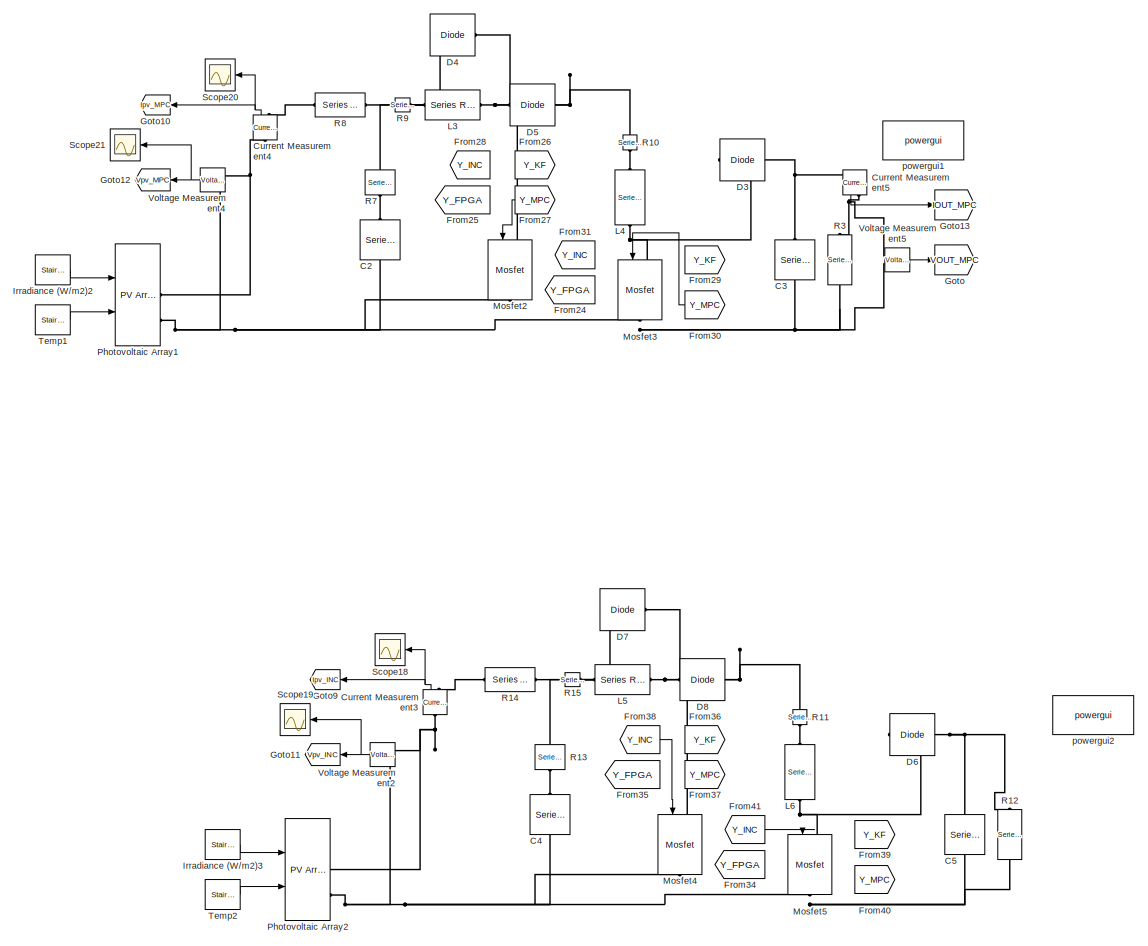
[diagram: root canvas - part 1/4, right side, full height]
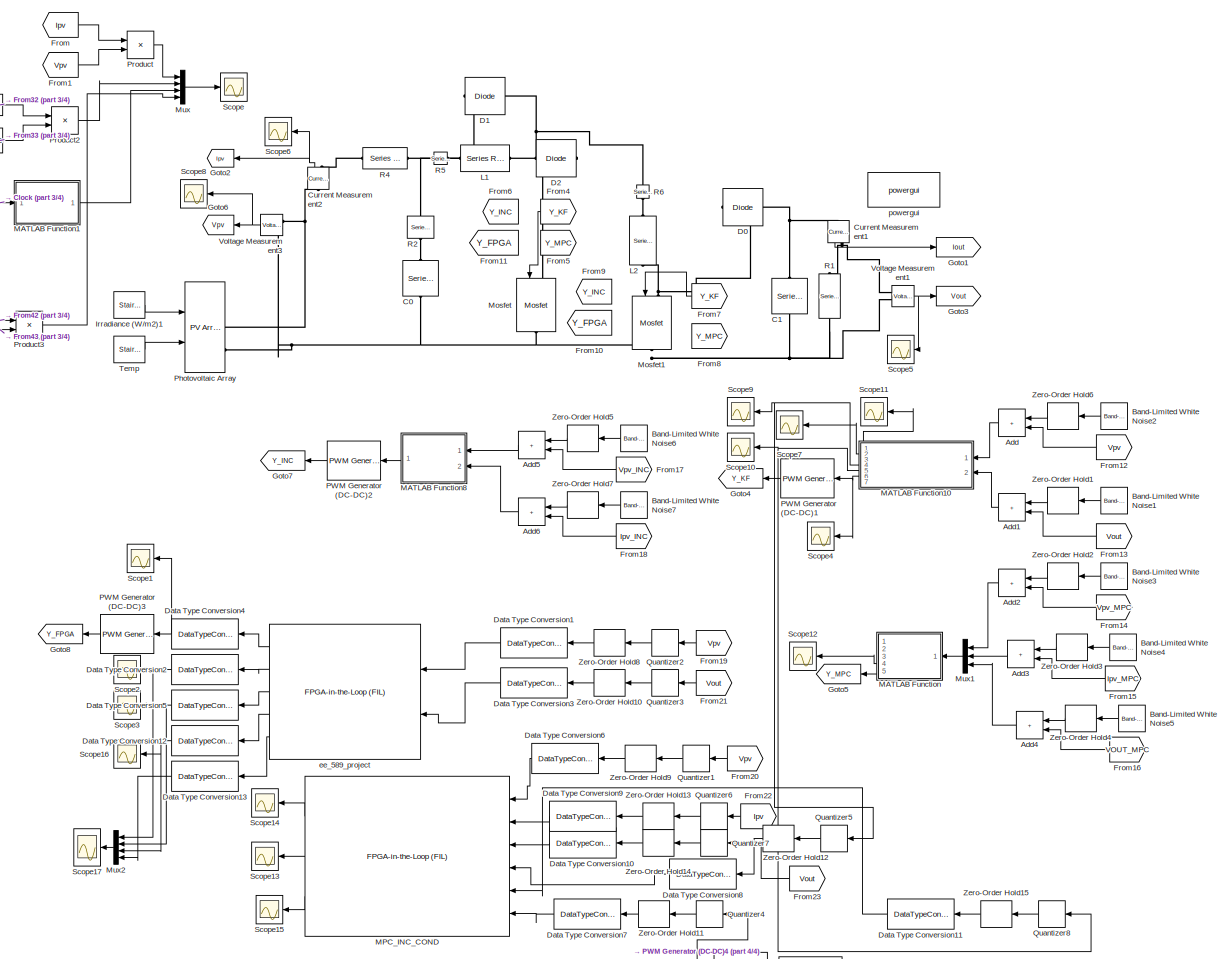
[diagram: root canvas - part 2/4, left side, full height]
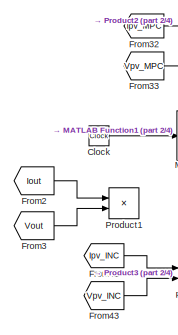
[diagram: root canvas - part 3/4, top left region]
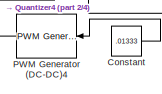
[diagram: root canvas - part 4/4, bottom center region]
MODEL slx_683b983c25f3
KIND model
CONFIG AbsTol = auto
CONFIG EnableMultiTasking = off
CONFIG FixedStep = auto
CONFIG MaxStep = auto
CONFIG MinStep = auto
CONFIG RelTol = 1e-3
CONFIG SampleTimeConstraint = Unconstrained
CONFIG SolverName = VariableStepAuto
CONFIG StartTime = 0.0
CONFIG StopTime = 2
BLOCK [Reference]  Temp  REF=powerlib_meascontrol/Pulse & Signal
Generators/Stair
Generator
  NameLocation = top
  Ports = [0, 1]
  SourceBlock = powerlib_meascontrol/Pulse & Signal\nGenerators/Stair\nGenerator
  SourceProductBaseCode = PS
  SourceType = Stair Generator
BLOCK [Reference]  Temp1  REF=powerlib_meascontrol/Pulse & Signal
Generators/Stair
Generator
  NameLocation = top
  Ports = [0, 1]
  SourceBlock = powerlib_meascontrol/Pulse & Signal\nGenerators/Stair\nGenerator
  SourceProductBaseCode = PS
  SourceType = Stair Generator
BLOCK [Reference]  Temp2  REF=powerlib_meascontrol/Pulse & Signal
Generators/Stair
Generator
  NameLocation = top
  Ports = [0, 1]
  SourceBlock = powerlib_meascontrol/Pulse & Signal\nGenerators/Stair\nGenerator
  SourceProductBaseCode = PS
  SourceType = Stair Generator
BLOCK [Sum] Add
  IconShape = rectangular
  Ports = [2, 1]
BLOCK [Sum] Add1
  IconShape = rectangular
  Ports = [2, 1]
BLOCK [Sum] Add2
  IconShape = rectangular
  Ports = [2, 1]
BLOCK [Sum] Add3
  IconShape = rectangular
  Ports = [2, 1]
BLOCK [Sum] Add4
  IconShape = rectangular
  Ports = [2, 1]
BLOCK [Sum] Add5
  IconShape = rectangular
  Ports = [2, 1]
BLOCK [Sum] Add6
  IconShape = rectangular
  Ports = [2, 1]
BLOCK [Reference] Band-Limited White Noise1  REF=simulink/Sources/Band-Limited
White Noise
  Commented = on
  Ports = [0, 1]
  SourceBlock = simulink/Sources/Band-Limited\nWhite Noise
  SourceProductBaseCode = SL
  SourceType = Band-Limited White Noise.
BLOCK [Reference] Band-Limited White Noise2  REF=simulink/Sources/Band-Limited
White Noise
  Commented = on
  Ports = [0, 1]
  SourceBlock = simulink/Sources/Band-Limited\nWhite Noise
  SourceProductBaseCode = SL
  SourceType = Band-Limited White Noise.
BLOCK [Reference] Band-Limited White Noise3  REF=simulink/Sources/Band-Limited
White Noise
  Commented = on
  Ports = [0, 1]
  SourceBlock = simulink/Sources/Band-Limited\nWhite Noise
  SourceProductBaseCode = SL
  SourceType = Band-Limited White Noise.
BLOCK [Reference] Band-Limited White Noise4  REF=simulink/Sources/Band-Limited
White Noise
  Commented = on
  Ports = [0, 1]
  SourceBlock = simulink/Sources/Band-Limited\nWhite Noise
  SourceProductBaseCode = SL
  SourceType = Band-Limited White Noise.
BLOCK [Reference] Band-Limited White Noise5  REF=simulink/Sources/Band-Limited
White Noise
  Commented = on
  Ports = [0, 1]
  SourceBlock = simulink/Sources/Band-Limited\nWhite Noise
  SourceProductBaseCode = SL
  SourceType = Band-Limited White Noise.
BLOCK [Reference] Band-Limited White Noise6  REF=simulink/Sources/Band-Limited
White Noise
  Commented = on
  Ports = [0, 1]
  SourceBlock = simulink/Sources/Band-Limited\nWhite Noise
  SourceProductBaseCode = SL
  SourceType = Band-Limited White Noise.
BLOCK [Reference] Band-Limited White Noise7  REF=simulink/Sources/Band-Limited
White Noise
  Commented = on
  Ports = [0, 1]
  SourceBlock = simulink/Sources/Band-Limited\nWhite Noise
  SourceProductBaseCode = SL
  SourceType = Band-Limited White Noise.
BLOCK [Reference] C0  REF=powerlib/Elements/Series RLC Branch
  NameLocation = left
  Ports = [0, 0, 0, 0, 0, 1, 1]
  SourceBlock = powerlib/Elements/Series RLC Branch
  SourceProductBaseCode = PS
  SourceType = Series RLC Branch
BLOCK [Reference] C1  REF=powerlib/Elements/Series RLC Branch
  NameLocation = left
  Ports = [0, 0, 0, 0, 0, 1, 1]
  SourceBlock = powerlib/Elements/Series RLC Branch
  SourceProductBaseCode = PS
  SourceType = Series RLC Branch
BLOCK [Reference] C2  REF=powerlib/Elements/Series RLC Branch
  NameLocation = left
  Ports = [0, 0, 0, 0, 0, 1, 1]
  SourceBlock = powerlib/Elements/Series RLC Branch
  SourceProductBaseCode = PS
  SourceType = Series RLC Branch
BLOCK [Reference] C3  REF=powerlib/Elements/Series RLC Branch
  NameLocation = left
  Ports = [0, 0, 0, 0, 0, 1, 1]
  SourceBlock = powerlib/Elements/Series RLC Branch
  SourceProductBaseCode = PS
  SourceType = Series RLC Branch
BLOCK [Reference] C4  REF=powerlib/Elements/Series RLC Branch
  NameLocation = left
  Ports = [0, 0, 0, 0, 0, 1, 1]
  SourceBlock = powerlib/Elements/Series RLC Branch
  SourceProductBaseCode = PS
  SourceType = Series RLC Branch
BLOCK [Reference] C5  REF=powerlib/Elements/Series RLC Branch
  NameLocation = left
  Ports = [0, 0, 0, 0, 0, 1, 1]
  SourceBlock = powerlib/Elements/Series RLC Branch
  SourceProductBaseCode = PS
  SourceType = Series RLC Branch
BLOCK [Clock] Clock
  DisplayTime = on
BLOCK [Constant] Constant
  Commented = on
  Value = .01333
BLOCK [Reference] Current Measurement1  REF=powerlib/Measurements/Current Measurement
  NameLocation = right
  Ports = [0, 1, 0, 0, 0, 1, 1]
  SourceBlock = powerlib/Measurements/Current Measurement
  SourceProductBaseCode = PS
  SourceType = Current Measurement
  UserDataPersistent = on
BLOCK [Reference] Current Measurement2  REF=powerlib/Measurements/Current Measurement
  NameLocation = right
  Ports = [0, 1, 0, 0, 0, 1, 1]
  SourceBlock = powerlib/Measurements/Current Measurement
  SourceProductBaseCode = PS
  SourceType = Current Measurement
  UserDataPersistent = on
BLOCK [Reference] Current Measurement3  REF=powerlib/Measurements/Current Measurement
  NameLocation = right
  Ports = [0, 1, 0, 0, 0, 1, 1]
  SourceBlock = powerlib/Measurements/Current Measurement
  SourceProductBaseCode = PS
  SourceType = Current Measurement
  UserDataPersistent = on
BLOCK [Reference] Current Measurement4  REF=powerlib/Measurements/Current Measurement
  NameLocation = right
  Ports = [0, 1, 0, 0, 0, 1, 1]
  SourceBlock = powerlib/Measurements/Current Measurement
  SourceProductBaseCode = PS
  SourceType = Current Measurement
  UserDataPersistent = on
BLOCK [Reference] Current Measurement5  REF=powerlib/Measurements/Current Measurement
  NameLocation = right
  Ports = [0, 1, 0, 0, 0, 1, 1]
  SourceBlock = powerlib/Measurements/Current Measurement
  SourceProductBaseCode = PS
  SourceType = Current Measurement
  UserDataPersistent = on
BLOCK [Reference] D0  REF=powerlib/Power
Electronics/Diode
  Ports = [0, 0, 0, 0, 0, 1, 1]
  SourceBlock = powerlib/Power\nElectronics/Diode
  SourceProductBaseCode = PS
  SourceType = Diode
BLOCK [Reference] D1  REF=powerlib/Power
Electronics/Diode
  Ports = [0, 0, 0, 0, 0, 1, 1]
  SourceBlock = powerlib/Power\nElectronics/Diode
  SourceProductBaseCode = PS
  SourceType = Diode
BLOCK [Reference] D2  REF=powerlib/Power
Electronics/Diode
  Ports = [0, 0, 0, 0, 0, 1, 1]
  SourceBlock = powerlib/Power\nElectronics/Diode
  SourceProductBaseCode = PS
  SourceType = Diode
BLOCK [Reference] D3  REF=powerlib/Power
Electronics/Diode
  Ports = [0, 0, 0, 0, 0, 1, 1]
  SourceBlock = powerlib/Power\nElectronics/Diode
  SourceProductBaseCode = PS
  SourceType = Diode
BLOCK [Reference] D4  REF=powerlib/Power
Electronics/Diode
  Ports = [0, 0, 0, 0, 0, 1, 1]
  SourceBlock = powerlib/Power\nElectronics/Diode
  SourceProductBaseCode = PS
  SourceType = Diode
BLOCK [Reference] D5  REF=powerlib/Power
Electronics/Diode
  Ports = [0, 0, 0, 0, 0, 1, 1]
  SourceBlock = powerlib/Power\nElectronics/Diode
  SourceProductBaseCode = PS
  SourceType = Diode
BLOCK [Reference] D6  REF=powerlib/Power
Electronics/Diode
  Ports = [0, 0, 0, 0, 0, 1, 1]
  SourceBlock = powerlib/Power\nElectronics/Diode
  SourceProductBaseCode = PS
  SourceType = Diode
BLOCK [Reference] D7  REF=powerlib/Power
Electronics/Diode
  Ports = [0, 0, 0, 0, 0, 1, 1]
  SourceBlock = powerlib/Power\nElectronics/Diode
  SourceProductBaseCode = PS
  SourceType = Diode
BLOCK [Reference] D8  REF=powerlib/Power
Electronics/Diode
  Ports = [0, 0, 0, 0, 0, 1, 1]
  SourceBlock = powerlib/Power\nElectronics/Diode
  SourceProductBaseCode = PS
  SourceType = Diode
BLOCK [DataTypeConversion] Data Type Conversion1
  Commented = on
  OutDataTypeStr = fixdt(1,32,16)
  RndMeth = Floor
  SaturateOnIntegerOverflow = off
BLOCK [DataTypeConversion] Data Type Conversion10
  Commented = on
  OutDataTypeStr = fixdt(1,32,16)
  RndMeth = Floor
  SaturateOnIntegerOverflow = off
BLOCK [DataTypeConversion] Data Type Conversion11
  Commented = on
  OutDataTypeStr = fixdt(1,32,16)
  RndMeth = Floor
  SaturateOnIntegerOverflow = off
BLOCK [DataTypeConversion] Data Type Conversion12
  Commented = on
  OutDataTypeStr = double
  RndMeth = Floor
  SaturateOnIntegerOverflow = off
BLOCK [DataTypeConversion] Data Type Conversion13
  Commented = on
  OutDataTypeStr = double
  RndMeth = Floor
  SaturateOnIntegerOverflow = off
BLOCK [DataTypeConversion] Data Type Conversion2
  Commented = on
  OutDataTypeStr = double
  RndMeth = Floor
  SaturateOnIntegerOverflow = off
BLOCK [DataTypeConversion] Data Type Conversion3
  Commented = on
  OutDataTypeStr = fixdt(1,32,16)
  RndMeth = Floor
  SaturateOnIntegerOverflow = off
BLOCK [DataTypeConversion] Data Type Conversion4
  Commented = on
  OutDataTypeStr = double
  RndMeth = Floor
  SaturateOnIntegerOverflow = off
BLOCK [DataTypeConversion] Data Type Conversion5
  Commented = on
  OutDataTypeStr = double
  RndMeth = Floor
  SaturateOnIntegerOverflow = off
BLOCK [DataTypeConversion] Data Type Conversion6
  Commented = on
  OutDataTypeStr = fixdt(1,32,16)
  RndMeth = Floor
  SaturateOnIntegerOverflow = off
BLOCK [DataTypeConversion] Data Type Conversion7
  Commented = on
  OutDataTypeStr = boolean
  RndMeth = Floor
  SaturateOnIntegerOverflow = off
BLOCK [DataTypeConversion] Data Type Conversion8
  Commented = on
  OutDataTypeStr = fixdt(1,32,16)
  RndMeth = Floor
  SaturateOnIntegerOverflow = off
BLOCK [DataTypeConversion] Data Type Conversion9
  Commented = on
  OutDataTypeStr = fixdt(1,32,16)
  RndMeth = Floor
  SaturateOnIntegerOverflow = off
BLOCK [From] From
  GotoTag = Ipv
BLOCK [From] From1
  GotoTag = Vpv
BLOCK [From] From10
  GotoTag = Y_FPGA
BLOCK [From] From11
  GotoTag = Y_FPGA
BLOCK [From] From12
  GotoTag = Vpv
BLOCK [From] From13
  GotoTag = Vout
BLOCK [From] From14
  GotoTag = Vpv_MPC
BLOCK [From] From15
  GotoTag = Ipv_MPC
BLOCK [From] From16
  GotoTag = VOUT_MPC
BLOCK [From] From17
  GotoTag = Vpv_INC
BLOCK [From] From18
  GotoTag = Ipv_INC
BLOCK [From] From19
  Commented = on
  GotoTag = Vpv
BLOCK [From] From2
  GotoTag = Iout
BLOCK [From] From20
  Commented = on
  GotoTag = Vpv
BLOCK [From] From21
  Commented = on
  GotoTag = Vout
BLOCK [From] From22
  Commented = on
  GotoTag = Ipv
BLOCK [From] From23
  Commented = on
  GotoTag = Vout
BLOCK [From] From24
  GotoTag = Y_FPGA
BLOCK [From] From25
  GotoTag = Y_FPGA
BLOCK [From] From26
  GotoTag = Y_KF
BLOCK [From] From27
  GotoTag = Y_MPC
BLOCK [From] From28
  GotoTag = Y_INC
BLOCK [From] From29
  GotoTag = Y_KF
BLOCK [From] From3
  GotoTag = Vout
BLOCK [From] From30
  GotoTag = Y_MPC
BLOCK [From] From31
  GotoTag = Y_INC
BLOCK [From] From32
  GotoTag = Ipv_MPC
BLOCK [From] From33
  GotoTag = Vpv_MPC
BLOCK [From] From34
  GotoTag = Y_FPGA
BLOCK [From] From35
  GotoTag = Y_FPGA
BLOCK [From] From36
  GotoTag = Y_KF
BLOCK [From] From37
  GotoTag = Y_MPC
BLOCK [From] From38
  GotoTag = Y_INC
BLOCK [From] From39
  GotoTag = Y_KF
BLOCK [From] From4
  GotoTag = Y_KF
BLOCK [From] From40
  GotoTag = Y_MPC
BLOCK [From] From41
  GotoTag = Y_INC
BLOCK [From] From42
  GotoTag = Ipv_INC
BLOCK [From] From43
  GotoTag = Vpv_INC
BLOCK [From] From5
  GotoTag = Y_MPC
BLOCK [From] From6
  GotoTag = Y_INC
BLOCK [From] From7
  GotoTag = Y_KF
BLOCK [From] From8
  GotoTag = Y_MPC
BLOCK [From] From9
  GotoTag = Y_INC
BLOCK [Goto] Goto
  GotoTag = VOUT_MPC
BLOCK [Goto] Goto1
  GotoTag = Iout
BLOCK [Goto] Goto10
  GotoTag = Ipv_MPC
BLOCK [Goto] Goto11
  GotoTag = Vpv_INC
BLOCK [Goto] Goto12
  GotoTag = Vpv_MPC
BLOCK [Goto] Goto13
  GotoTag = IOUT_MPC
BLOCK [Goto] Goto2
  GotoTag = Ipv
BLOCK [Goto] Goto3
  GotoTag = Vout
BLOCK [Goto] Goto4
  GotoTag = Y_KF
BLOCK [Goto] Goto5
  GotoTag = Y_MPC
BLOCK [Goto] Goto6
  GotoTag = Vpv
BLOCK [Goto] Goto7
  GotoTag = Y_INC
BLOCK [Goto] Goto8
  GotoTag = Y_FPGA
BLOCK [Goto] Goto9
  GotoTag = Ipv_INC
BLOCK [Reference] Irradiance (W//m2)1  REF=powerlib_meascontrol/Pulse & Signal
Generators/Stair
Generator
  NameLocation = top
  Ports = [0, 1]
  SourceBlock = powerlib_meascontrol/Pulse & Signal\nGenerators/Stair\nGenerator
  SourceProductBaseCode = PS
  SourceType = Stair Generator
BLOCK [Reference] Irradiance (W//m2)2  REF=powerlib_meascontrol/Pulse & Signal
Generators/Stair
Generator
  NameLocation = top
  Ports = [0, 1]
  SourceBlock = powerlib_meascontrol/Pulse & Signal\nGenerators/Stair\nGenerator
  SourceProductBaseCode = PS
  SourceType = Stair Generator
BLOCK [Reference] Irradiance (W//m2)3  REF=powerlib_meascontrol/Pulse & Signal
Generators/Stair
Generator
  NameLocation = top
  Ports = [0, 1]
  SourceBlock = powerlib_meascontrol/Pulse & Signal\nGenerators/Stair\nGenerator
  SourceProductBaseCode = PS
  SourceType = Stair Generator
BLOCK [Reference] L1  REF=powerlib/Elements/Series RLC Branch
  NameLocation = top
  Ports = [0, 0, 0, 0, 0, 1, 1]
  SourceBlock = powerlib/Elements/Series RLC Branch
  SourceProductBaseCode = PS
  SourceType = Series RLC Branch
BLOCK [Reference] L2  REF=powerlib/Elements/Series RLC Branch
  NameLocation = right
  Ports = [0, 0, 0, 0, 0, 1, 1]
  SourceBlock = powerlib/Elements/Series RLC Branch
  SourceProductBaseCode = PS
  SourceType = Series RLC Branch
BLOCK [Reference] L3  REF=powerlib/Elements/Series RLC Branch
  NameLocation = top
  Ports = [0, 0, 0, 0, 0, 1, 1]
  SourceBlock = powerlib/Elements/Series RLC Branch
  SourceProductBaseCode = PS
  SourceType = Series RLC Branch
BLOCK [Reference] L4  REF=powerlib/Elements/Series RLC Branch
  NameLocation = right
  Ports = [0, 0, 0, 0, 0, 1, 1]
  SourceBlock = powerlib/Elements/Series RLC Branch
  SourceProductBaseCode = PS
  SourceType = Series RLC Branch
BLOCK [Reference] L5  REF=powerlib/Elements/Series RLC Branch
  NameLocation = top
  Ports = [0, 0, 0, 0, 0, 1, 1]
  SourceBlock = powerlib/Elements/Series RLC Branch
  SourceProductBaseCode = PS
  SourceType = Series RLC Branch
BLOCK [Reference] L6  REF=powerlib/Elements/Series RLC Branch
  NameLocation = right
  Ports = [0, 0, 0, 0, 0, 1, 1]
  SourceBlock = powerlib/Elements/Series RLC Branch
  SourceProductBaseCode = PS
  SourceType = Series RLC Branch
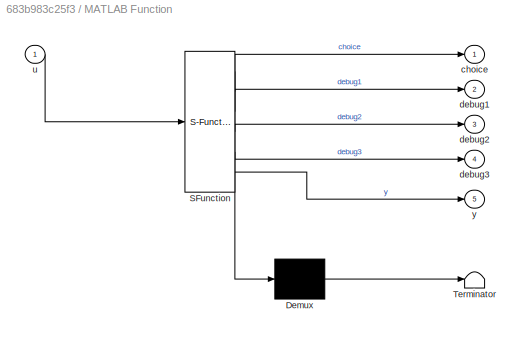
BLOCK [SubSystem] MATLAB Function
  ErrorFcn = Stateflow.Translate.translate
  PermitHierarchicalResolution = ExplicitOnly
  Ports = [1, 5]
  RequestExecContextInheritance = off
  SFBlockType = MATLAB Function
  SystemSampleTime = 15e-6
  TreatAsAtomicUnit = on
BLOCK [Demux] MATLAB Function/ Demux 
  Outputs = 1
  Ports = [1, 1]
BLOCK [S-Function] MATLAB Function/ SFunction 
  EnableBusSupport = on
  FunctionName = sf_sfun
  PortCounts = [1 6]
  Ports = [1, 6]
  SFcnIsStateOwnerBlock = off
  SFunctionDeploymentMode = off
  Tag = Stateflow S-Function 2
BLOCK [Terminator] MATLAB Function/ Terminator 
BLOCK [Outport] MATLAB Function/choice
BLOCK [Outport] MATLAB Function/debug1
  Port = 2
BLOCK [Outport] MATLAB Function/debug2
  Port = 3
BLOCK [Outport] MATLAB Function/debug3
  Port = 4
BLOCK [Inport] MATLAB Function/u
BLOCK [Outport] MATLAB Function/y
  Port = 5
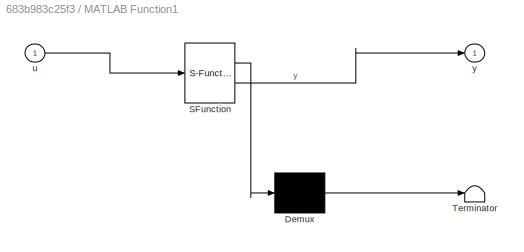
BLOCK [SubSystem] MATLAB Function1
  ErrorFcn = Stateflow.Translate.translate
  PermitHierarchicalResolution = ExplicitOnly
  Ports = [1, 1]
  RequestExecContextInheritance = off
  SFBlockType = MATLAB Function
  TreatAsAtomicUnit = on
BLOCK [Demux] MATLAB Function1/ Demux 
  Outputs = 1
  Ports = [1, 1]
BLOCK [S-Function] MATLAB Function1/ SFunction 
  EnableBusSupport = on
  FunctionName = sf_sfun
  PortCounts = [1 2]
  Ports = [1, 2]
  SFcnIsStateOwnerBlock = off
  SFunctionDeploymentMode = off
  Tag = Stateflow S-Function 1
BLOCK [Terminator] MATLAB Function1/ Terminator 
BLOCK [Inport] MATLAB Function1/u
BLOCK [Outport] MATLAB Function1/y
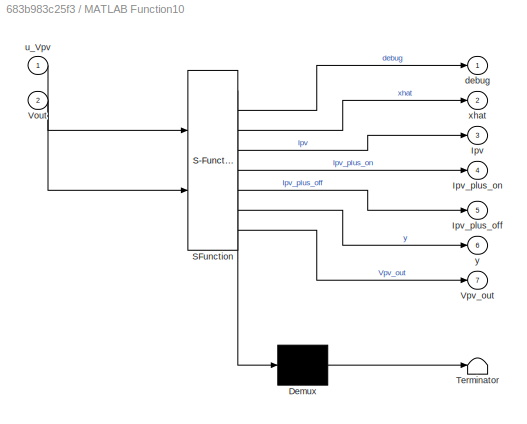
BLOCK [SubSystem] MATLAB Function10
  ErrorFcn = Stateflow.Translate.translate
  PermitHierarchicalResolution = ExplicitOnly
  Ports = [2, 7]
  RequestExecContextInheritance = off
  SFBlockType = MATLAB Function
  SystemSampleTime = 15e-6
  TreatAsAtomicUnit = on
BLOCK [Demux] MATLAB Function10/ Demux 
  Outputs = 1
  Ports = [1, 1]
BLOCK [S-Function] MATLAB Function10/ SFunction 
  EnableBusSupport = on
  FunctionName = sf_sfun
  PortCounts = [2 8]
  Ports = [2, 8]
  SFcnIsStateOwnerBlock = off
  SFunctionDeploymentMode = off
  Tag = Stateflow S-Function 11
BLOCK [Terminator] MATLAB Function10/ Terminator 
BLOCK [Outport] MATLAB Function10/Ipv
  Port = 3
BLOCK [Outport] MATLAB Function10/Ipv_plus_off
  Port = 5
BLOCK [Outport] MATLAB Function10/Ipv_plus_on
  Port = 4
BLOCK [Inport] MATLAB Function10/Vout
  Port = 2
BLOCK [Outport] MATLAB Function10/Vpv_out
  Port = 7
BLOCK [Outport] MATLAB Function10/debug
BLOCK [Inport] MATLAB Function10/u_Vpv
BLOCK [Outport] MATLAB Function10/xhat
  Port = 2
BLOCK [Outport] MATLAB Function10/y
  Port = 6
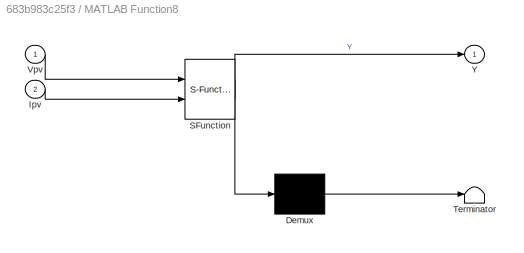
BLOCK [SubSystem] MATLAB Function8
  ErrorFcn = Stateflow.Translate.translate
  PermitHierarchicalResolution = ExplicitOnly
  Ports = [2, 1]
  RequestExecContextInheritance = off
  SFBlockType = MATLAB Function
  SystemSampleTime = 15e-6
  TreatAsAtomicUnit = on
BLOCK [Demux] MATLAB Function8/ Demux 
  Outputs = 1
  Ports = [1, 1]
BLOCK [S-Function] MATLAB Function8/ SFunction 
  EnableBusSupport = on
  FunctionName = sf_sfun
  PortCounts = [2 2]
  Ports = [2, 2]
  SFcnIsStateOwnerBlock = off
  SFunctionDeploymentMode = off
  Tag = Stateflow S-Function 9
BLOCK [Terminator] MATLAB Function8/ Terminator 
BLOCK [Inport] MATLAB Function8/Ipv
  Port = 2
BLOCK [Inport] MATLAB Function8/Vpv
BLOCK [Outport] MATLAB Function8/Y
BLOCK [Reference] MPC_INC_COND  REF=fillib/FPGA-in-the-Loop (FIL)
  Commented = on
  Ports = [6, 3]
  SourceBlock = fillib/FPGA-in-the-Loop (FIL)
  SourceProductBaseCode = ES,HD
  SourceType = FPGA-in-the-Loop (FIL)
  UserDataPersistent = on
BLOCK [Reference] Mosfet  REF=powerlib/Power
Electronics/Mosfet
  NameLocation = left
  Ports = [1, 0, 0, 0, 0, 1, 1]
  SourceBlock = powerlib/Power\nElectronics/Mosfet
  SourceProductBaseCode = PS
  SourceType = Mosfet
BLOCK [Reference] Mosfet1  REF=powerlib/Power
Electronics/Mosfet
  NameLocation = left
  Ports = [1, 0, 0, 0, 0, 1, 1]
  SourceBlock = powerlib/Power\nElectronics/Mosfet
  SourceProductBaseCode = PS
  SourceType = Mosfet
BLOCK [Reference] Mosfet2  REF=powerlib/Power
Electronics/Mosfet
  NameLocation = left
  Ports = [1, 0, 0, 0, 0, 1, 1]
  SourceBlock = powerlib/Power\nElectronics/Mosfet
  SourceProductBaseCode = PS
  SourceType = Mosfet
BLOCK [Reference] Mosfet3  REF=powerlib/Power
Electronics/Mosfet
  NameLocation = left
  Ports = [1, 0, 0, 0, 0, 1, 1]
  SourceBlock = powerlib/Power\nElectronics/Mosfet
  SourceProductBaseCode = PS
  SourceType = Mosfet
BLOCK [Reference] Mosfet4  REF=powerlib/Power
Electronics/Mosfet
  NameLocation = left
  Ports = [1, 0, 0, 0, 0, 1, 1]
  SourceBlock = powerlib/Power\nElectronics/Mosfet
  SourceProductBaseCode = PS
  SourceType = Mosfet
BLOCK [Reference] Mosfet5  REF=powerlib/Power
Electronics/Mosfet
  NameLocation = left
  Ports = [1, 0, 0, 0, 0, 1, 1]
  SourceBlock = powerlib/Power\nElectronics/Mosfet
  SourceProductBaseCode = PS
  SourceType = Mosfet
BLOCK [Mux] Mux
  DisplayOption = bar
  Ports = [4, 1]
BLOCK [Mux] Mux1
  DisplayOption = bar
  Inputs = 3
  Ports = [3, 1]
BLOCK [Mux] Mux2
  Commented = on
  DisplayOption = bar
  Ports = [4, 1]
BLOCK [Reference] PWM Generator (DC-DC)1  REF=powerlib_meascontrol/Pulse & Signal
Generators/PWM Generator
(DC-DC)
  NameLocation = top
  Ports = [1, 1]
  SourceBlock = powerlib_meascontrol/Pulse & Signal\nGenerators/PWM Generator\n(DC-DC)
  SourceProductBaseCode = PS
  SourceType = PWM Generator (DC-DC)
BLOCK [Reference] PWM Generator (DC-DC)2  REF=powerlib_meascontrol/Pulse & Signal
Generators/PWM Generator
(DC-DC)
  NameLocation = top
  Ports = [1, 1]
  SourceBlock = powerlib_meascontrol/Pulse & Signal\nGenerators/PWM Generator\n(DC-DC)
  SourceProductBaseCode = PS
  SourceType = PWM Generator (DC-DC)
BLOCK [Reference] PWM Generator (DC-DC)3  REF=powerlib_meascontrol/Pulse & Signal
Generators/PWM Generator
(DC-DC)
  Commented = on
  NameLocation = top
  Ports = [1, 1]
  SourceBlock = powerlib_meascontrol/Pulse & Signal\nGenerators/PWM Generator\n(DC-DC)
  SourceProductBaseCode = PS
  SourceType = PWM Generator (DC-DC)
BLOCK [Reference] PWM Generator (DC-DC)4  REF=powerlib_meascontrol/Pulse & Signal
Generators/PWM Generator
(DC-DC)
  Commented = on
  NameLocation = top
  Ports = [1, 1]
  SourceBlock = powerlib_meascontrol/Pulse & Signal\nGenerators/PWM Generator\n(DC-DC)
  SourceProductBaseCode = PS
  SourceType = PWM Generator (DC-DC)
BLOCK [Reference] Photovoltaic Array  REF=re_lib/Solar/PV Array
  AttributesFormatString = %<ModuleName>\n%<Nser>-module string\n%<Npar> parallel strings
  Ports = [2, 1, 0, 0, 0, 0, 2]
  SourceBlock = re_lib/Solar/PV Array
  SourceProductBaseCode = PS
  SourceType = PV array
BLOCK [Reference] Photovoltaic Array1  REF=re_lib/Solar/PV Array
  AttributesFormatString = %<ModuleName>\n%<Nser>-module string\n%<Npar> parallel strings
  Ports = [2, 1, 0, 0, 0, 0, 2]
  SourceBlock = re_lib/Solar/PV Array
  SourceProductBaseCode = PS
  SourceType = PV array
BLOCK [Reference] Photovoltaic Array2  REF=re_lib/Solar/PV Array
  AttributesFormatString = %<ModuleName>\n%<Nser>-module string\n%<Npar> parallel strings
  Ports = [2, 1, 0, 0, 0, 0, 2]
  SourceBlock = re_lib/Solar/PV Array
  SourceProductBaseCode = PS
  SourceType = PV array
BLOCK [Product] Product
  Ports = [2, 1]
BLOCK [Product] Product1
  Ports = [2, 1]
BLOCK [Product] Product2
  Ports = [2, 1]
BLOCK [Product] Product3
  Ports = [2, 1]
BLOCK [Quantizer] Quantizer1
  Commented = on
  QuantizationInterval = 15e-6
BLOCK [Quantizer] Quantizer2
  Commented = on
  QuantizationInterval = 15e-6
BLOCK [Quantizer] Quantizer3
  Commented = on
  QuantizationInterval = 15e-6
BLOCK [Quantizer] Quantizer4
  Commented = on
  QuantizationInterval = 15e-6
BLOCK [Quantizer] Quantizer5
  Commented = on
  QuantizationInterval = 15e-6
BLOCK [Quantizer] Quantizer6
  Commented = on
  QuantizationInterval = 15e-6
BLOCK [Quantizer] Quantizer7
  Commented = on
  QuantizationInterval = 15e-6
BLOCK [Quantizer] Quantizer8
  Commented = on
  QuantizationInterval = 15e-6
BLOCK [Reference] R1  REF=powerlib/Elements/Series RLC Branch
  NameLocation = left
  Ports = [0, 0, 0, 0, 0, 1, 1]
  SourceBlock = powerlib/Elements/Series RLC Branch
  SourceProductBaseCode = PS
  SourceType = Series RLC Branch
BLOCK [Reference] R10  REF=powerlib/Elements/Series RLC Branch
  NameLocation = left
  Ports = [0, 0, 0, 0, 0, 1, 1]
  SourceBlock = powerlib/Elements/Series RLC Branch
  SourceProductBaseCode = PS
  SourceType = Series RLC Branch
BLOCK [Reference] R11  REF=powerlib/Elements/Series RLC Branch
  NameLocation = left
  Ports = [0, 0, 0, 0, 0, 1, 1]
  SourceBlock = powerlib/Elements/Series RLC Branch
  SourceProductBaseCode = PS
  SourceType = Series RLC Branch
BLOCK [Reference] R12  REF=powerlib/Elements/Series RLC Branch
  NameLocation = left
  Ports = [0, 0, 0, 0, 0, 1, 1]
  SourceBlock = powerlib/Elements/Series RLC Branch
  SourceProductBaseCode = PS
  SourceType = Series RLC Branch
BLOCK [Reference] R13  REF=powerlib/Elements/Series RLC Branch
  NameLocation = left
  Ports = [0, 0, 0, 0, 0, 1, 1]
  SourceBlock = powerlib/Elements/Series RLC Branch
  SourceProductBaseCode = PS
  SourceType = Series RLC Branch
BLOCK [Reference] R14  REF=powerlib/Elements/Series RLC Branch
  Ports = [0, 0, 0, 0, 0, 1, 1]
  SourceBlock = powerlib/Elements/Series RLC Branch
  SourceProductBaseCode = PS
  SourceType = Series RLC Branch
BLOCK [Reference] R15  REF=powerlib/Elements/Series RLC Branch
  Ports = [0, 0, 0, 0, 0, 1, 1]
  SourceBlock = powerlib/Elements/Series RLC Branch
  SourceProductBaseCode = PS
  SourceType = Series RLC Branch
BLOCK [Reference] R2  REF=powerlib/Elements/Series RLC Branch
  NameLocation = left
  Ports = [0, 0, 0, 0, 0, 1, 1]
  SourceBlock = powerlib/Elements/Series RLC Branch
  SourceProductBaseCode = PS
  SourceType = Series RLC Branch
BLOCK [Reference] R3  REF=powerlib/Elements/Series RLC Branch
  NameLocation = left
  Ports = [0, 0, 0, 0, 0, 1, 1]
  SourceBlock = powerlib/Elements/Series RLC Branch
  SourceProductBaseCode = PS
  SourceType = Series RLC Branch
BLOCK [Reference] R4  REF=powerlib/Elements/Series RLC Branch
  Ports = [0, 0, 0, 0, 0, 1, 1]
  SourceBlock = powerlib/Elements/Series RLC Branch
  SourceProductBaseCode = PS
  SourceType = Series RLC Branch
BLOCK [Reference] R5  REF=powerlib/Elements/Series RLC Branch
  Ports = [0, 0, 0, 0, 0, 1, 1]
  SourceBlock = powerlib/Elements/Series RLC Branch
  SourceProductBaseCode = PS
  SourceType = Series RLC Branch
BLOCK [Reference] R6  REF=powerlib/Elements/Series RLC Branch
  NameLocation = left
  Ports = [0, 0, 0, 0, 0, 1, 1]
  SourceBlock = powerlib/Elements/Series RLC Branch
  SourceProductBaseCode = PS
  SourceType = Series RLC Branch
BLOCK [Reference] R7  REF=powerlib/Elements/Series RLC Branch
  NameLocation = left
  Ports = [0, 0, 0, 0, 0, 1, 1]
  SourceBlock = powerlib/Elements/Series RLC Branch
  SourceProductBaseCode = PS
  SourceType = Series RLC Branch
BLOCK [Reference] R8  REF=powerlib/Elements/Series RLC Branch
  Ports = [0, 0, 0, 0, 0, 1, 1]
  SourceBlock = powerlib/Elements/Series RLC Branch
  SourceProductBaseCode = PS
  SourceType = Series RLC Branch
BLOCK [Reference] R9  REF=powerlib/Elements/Series RLC Branch
  Ports = [0, 0, 0, 0, 0, 1, 1]
  SourceBlock = powerlib/Elements/Series RLC Branch
  SourceProductBaseCode = PS
  SourceType = Series RLC Branch
BLOCK [Scope] Scope
  Floating = off
  NumInputPorts = 1
  Ports = [1]
  ScopeSpecificationString = Simulink.scopes.TimeScopeBlockCfg('CurrentConfiguration', extmgr.ConfigurationSet(extmgr.Configuration('Core','General UI',true),extmgr.Configuration('Core','Source UI',true),extmgr.Configuration('Sources','WiredSimulink',true,'DataLogging',true,'DataLoggingVariableName','P_IN_OUT','DataLoggingSaveFormat','Array'),extmgr.Configuration('Visuals','Time Domain',true,'SerializedDisplays',{struct('MinY...<+1563ch>
BLOCK [Scope] Scope1
  Commented = on
  Floating = off
  NumInputPorts = 1
  Ports = [1]
  ScopeSpecificationString = Simulink.scopes.TimeScopeBlockCfg('CurrentConfiguration', extmgr.ConfigurationSet(extmgr.Configuration('Core','General UI',true),extmgr.Configuration('Core','Source UI',true),extmgr.Configuration('Sources','WiredSimulink',true,'DataLoggingVariableName','ScopeData1'),extmgr.Configuration('Visuals','Time Domain',true,'SerializedDisplays',{struct('MinYLimReal','0.38981','MaxYLimReal','1.0678','YLabel...<+1447ch>
BLOCK [Scope] Scope10
  Floating = off
  NumInputPorts = 1
  Ports = [1]
  ScopeSpecificationString = Simulink.scopes.TimeScopeBlockCfg('CurrentConfiguration', extmgr.ConfigurationSet(extmgr.Configuration('Core','General UI',true),extmgr.Configuration('Core','Source UI',true),extmgr.Configuration('Sources','WiredSimulink',true,'DataLoggingVariableName','ScopeData2'),extmgr.Configuration('Visuals','Time Domain',true,'SerializedDisplays',{struct('MinYLimReal','4.07804','MaxYLimReal','9.40363','YLabe...<+1431ch>
BLOCK [Scope] Scope11
  Floating = off
  NumInputPorts = 1
  Ports = [1]
  ScopeSpecificationString = Simulink.scopes.TimeScopeBlockCfg('CurrentConfiguration', extmgr.ConfigurationSet(extmgr.Configuration('Core','General UI',true),extmgr.Configuration('Core','Source UI',true),extmgr.Configuration('Sources','WiredSimulink',true,'DataLoggingVariableName','ScopeData3'),extmgr.Configuration('Visuals','Time Domain',true,'SerializedDisplays',{struct('MinYLimReal','1.04493','MaxYLimReal','1.71583','YLabe...<+1424ch>
BLOCK [Scope] Scope12
  Floating = off
  NumInputPorts = 1
  Ports = [1]
  ScopeSpecificationString = Simulink.scopes.TimeScopeBlockCfg('CurrentConfiguration', extmgr.ConfigurationSet(extmgr.Configuration('Core','General UI',true),extmgr.Configuration('Core','Source UI',true),extmgr.Configuration('Sources','WiredSimulink',true,'DataLoggingVariableName','ScopeData4'),extmgr.Configuration('Visuals','Time Domain',true,'SerializedDisplays',{struct('MinYLimReal','-0.9105','MaxYLimReal','8.1945','YLabel...<+1448ch>
BLOCK [Scope] Scope13
  Commented = on
  Floating = off
  NumInputPorts = 1
  Ports = [1]
  ScopeSpecificationString = Simulink.scopes.TimeScopeBlockCfg('CurrentConfiguration', extmgr.ConfigurationSet(extmgr.Configuration('Core','General UI',true),extmgr.Configuration('Core','Source UI',true),extmgr.Configuration('Sources','WiredSimulink',true,'DataLoggingVariableName','ScopeData5'),extmgr.Configuration('Visuals','Time Domain',true,'SerializedDisplays',{struct('MinYLimReal','-0.125','MaxYLimReal','1.125','YLabelRe...<+1405ch>
BLOCK [Scope] Scope14
  Commented = on
  Floating = off
  NumInputPorts = 1
  Ports = [1]
  ScopeSpecificationString = Simulink.scopes.TimeScopeBlockCfg('CurrentConfiguration', extmgr.ConfigurationSet(extmgr.Configuration('Core','General UI',true),extmgr.Configuration('Core','Source UI',true),extmgr.Configuration('Sources','WiredSimulink',true,'DataLoggingVariableName','ScopeData6'),extmgr.Configuration('Visuals','Time Domain',true,'SerializedDisplays',{struct('MinYLimReal','0.65391','MaxYLimReal','0.82363','YLabe...<+1444ch>
BLOCK [Scope] Scope15
  Commented = on
  Floating = off
  NumInputPorts = 1
  Ports = [1]
  ScopeSpecificationString = Simulink.scopes.TimeScopeBlockCfg('CurrentConfiguration', extmgr.ConfigurationSet(extmgr.Configuration('Core','General UI',true),extmgr.Configuration('Core','Source UI',true),extmgr.Configuration('Sources','WiredSimulink',true,'DataLoggingVariableName','ScopeData7'),extmgr.Configuration('Visuals','Time Domain',true,'SerializedDisplays',{struct('MinYLimReal','-0.02631','MaxYLimReal','0.22672','YLab...<+1417ch>
BLOCK [Scope] Scope16
  Commented = on
  Floating = off
  NumInputPorts = 1
  Ports = [1]
  ScopeSpecificationString = Simulink.scopes.TimeScopeBlockCfg('CurrentConfiguration', extmgr.ConfigurationSet(extmgr.Configuration('Core','General UI',true),extmgr.Configuration('Core','Source UI',true),extmgr.Configuration('Sources','WiredSimulink',true,'DataLoggingVariableName','ScopeData8'),extmgr.Configuration('Visuals','Time Domain',true,'SerializedDisplays',{struct('MinYLimReal','1.83227','MaxYLimReal','2.06816','YLabe...<+1422ch>
BLOCK [Scope] Scope17
  Commented = on
  Floating = off
  NumInputPorts = 1
  Ports = [1]
  ScopeSpecificationString = Simulink.scopes.TimeScopeBlockCfg('CurrentConfiguration', extmgr.ConfigurationSet(extmgr.Configuration('Core','General UI',true),extmgr.Configuration('Core','Source UI',true),extmgr.Configuration('Sources','WiredSimulink',true,'DataLoggingVariableName','ScopeData9'),extmgr.Configuration('Visuals','Time Domain',true,'SerializedDisplays',{struct('MinYLimReal','-1.11145','MaxYLimReal','9.99302','YLab...<+1527ch>
BLOCK [Scope] Scope18
  Floating = off
  NumInputPorts = 1
  Ports = [1]
  ScopeSpecificationString = Simulink.scopes.TimeScopeBlockCfg('CurrentConfiguration', extmgr.ConfigurationSet(extmgr.Configuration('Core','General UI',true),extmgr.Configuration('Core','Source UI',true),extmgr.Configuration('Sources','WiredSimulink',true,'DataLoggingVariableName','ScopeData10'),extmgr.Configuration('Visuals','Time Domain',true,'SerializedDisplays',{struct('MinYLimReal','1.54368','MaxYLimReal','2.48833','YLab...<+1422ch>
BLOCK [Scope] Scope19
  Floating = off
  NumInputPorts = 1
  Ports = [1]
  ScopeSpecificationString = Simulink.scopes.TimeScopeBlockCfg('CurrentConfiguration', extmgr.ConfigurationSet(extmgr.Configuration('Core','General UI',true),extmgr.Configuration('Core','Source UI',true),extmgr.Configuration('Sources','WiredSimulink',true,'DataLoggingVariableName','ScopeData13','DataLogging',true,'DataLoggingSaveFormat','Array','SampleTime','15e-6'),extmgr.Configuration('Visuals','Time Domain',true,'Serialize...<+1527ch>
BLOCK [Scope] Scope2
  Commented = on
  Floating = off
  NumInputPorts = 1
  Ports = [1]
  ScopeSpecificationString = Simulink.scopes.TimeScopeBlockCfg('CurrentConfiguration', extmgr.ConfigurationSet(extmgr.Configuration('Core','General UI',true),extmgr.Configuration('Core','Source UI',true),extmgr.Configuration('Sources','WiredSimulink',true,'DataLoggingVariableName','ScopeData1'),extmgr.Configuration('Visuals','Time Domain',true,'SerializedDisplays',{struct('MinYLimReal','-0.53224','MaxYLimReal','4.78011','YLab...<+1453ch>
BLOCK [Scope] Scope20
  Floating = off
  NumInputPorts = 1
  Ports = [1]
  ScopeSpecificationString = Simulink.scopes.TimeScopeBlockCfg('CurrentConfiguration', extmgr.ConfigurationSet(extmgr.Configuration('Core','General UI',true),extmgr.Configuration('Core','Source UI',true),extmgr.Configuration('Sources','WiredSimulink',true,'DataLoggingVariableName','ScopeData11'),extmgr.Configuration('Visuals','Time Domain',true,'SerializedDisplays',{struct('MinYLimReal','1.54368','MaxYLimReal','2.48833','YLab...<+1422ch>
BLOCK [Scope] Scope21
  Floating = off
  NumInputPorts = 1
  Ports = [1]
  ScopeSpecificationString = Simulink.scopes.TimeScopeBlockCfg('CurrentConfiguration', extmgr.ConfigurationSet(extmgr.Configuration('Core','General UI',true),extmgr.Configuration('Core','Source UI',true),extmgr.Configuration('Sources','WiredSimulink',true,'DataLoggingVariableName','ScopeData12','DataLogging',true,'DataLoggingSaveFormat','Array','SampleTime','15e-6'),extmgr.Configuration('Visuals','Time Domain',true,'Serialize...<+1527ch>
BLOCK [Scope] Scope3
  Commented = on
  Floating = off
  NumInputPorts = 1
  Ports = [1]
  ScopeSpecificationString = Simulink.scopes.TimeScopeBlockCfg('CurrentConfiguration', extmgr.ConfigurationSet(extmgr.Configuration('Core','General UI',true),extmgr.Configuration('Core','Source UI',true),extmgr.Configuration('Sources','WiredSimulink',true,'DataLoggingVariableName','ScopeData2'),extmgr.Configuration('Visuals','Time Domain',true,'SerializedDisplays',{struct('MinYLimReal','1.83227','MaxYLimReal','2.06816','YLabe...<+1422ch>
BLOCK [Scope] Scope4
  Floating = off
  NumInputPorts = 1
  Ports = [1]
  ScopeSpecificationString = Simulink.scopes.TimeScopeBlockCfg('CurrentConfiguration', extmgr.ConfigurationSet(extmgr.Configuration('Core','General UI',true),extmgr.Configuration('Core','Source UI',true),extmgr.Configuration('Sources','WiredSimulink',true,'DataLoggingVariableName','ScopeData3'),extmgr.Configuration('Visuals','Time Domain',true,'SerializedDisplays',{struct('MinYLimReal','0.74962','MaxYLimReal','0.9334','YLabel...<+1416ch>
BLOCK [Scope] Scope5
  Floating = off
  NumInputPorts = 1
  Ports = [1]
  ScopeSpecificationString = Simulink.scopes.TimeScopeBlockCfg('CurrentConfiguration', extmgr.ConfigurationSet(extmgr.Configuration('Core','General UI',true),extmgr.Configuration('Core','Source UI',true),extmgr.Configuration('Sources','WiredSimulink',true,'DataLoggingVariableName','Vout_out','DataLogging',true,'DataLoggingSaveFormat','Array','SampleTime','15e-6'),extmgr.Configuration('Visuals','Time Domain',true,'SerializedDi...<+1497ch>
BLOCK [Scope] Scope6
  Floating = off
  NumInputPorts = 1
  Ports = [1]
  ScopeSpecificationString = Simulink.scopes.TimeScopeBlockCfg('CurrentConfiguration', extmgr.ConfigurationSet(extmgr.Configuration('Core','General UI',true),extmgr.Configuration('Core','Source UI',true),extmgr.Configuration('Sources','WiredSimulink',true,'DataLoggingVariableName','ScopeData5'),extmgr.Configuration('Visuals','Time Domain',true,'SerializedDisplays',{struct('MinYLimReal','1.54368','MaxYLimReal','2.48833','YLabe...<+1421ch>
BLOCK [Scope] Scope7
  Floating = off
  NumInputPorts = 1
  Ports = [1]
  ScopeSpecificationString = Simulink.scopes.TimeScopeBlockCfg('CurrentConfiguration', extmgr.ConfigurationSet(extmgr.Configuration('Core','General UI',true),extmgr.Configuration('Core','Source UI',true),extmgr.Configuration('Sources','WiredSimulink',true,'DataLoggingVariableName','ScopeData6'),extmgr.Configuration('Visuals','Time Domain',true,'SerializedDisplays',{struct('MinYLimReal','-13.49199','MaxYLimReal','98.09478','YL...<+1514ch>
BLOCK [Scope] Scope8
  Floating = off
  NumInputPorts = 1
  Ports = [1]
  ScopeSpecificationString = Simulink.scopes.TimeScopeBlockCfg('CurrentConfiguration', extmgr.ConfigurationSet(extmgr.Configuration('Core','General UI',true),extmgr.Configuration('Core','Source UI',true),extmgr.Configuration('Sources','WiredSimulink',true,'DataLoggingVariableName','Vpv_out','DataLogging',true,'DataLoggingSaveFormat','Array','SampleTime','15e-6'),extmgr.Configuration('Visuals','Time Domain',true,'SerializedDis...<+1523ch>
BLOCK [Scope] Scope9
  Floating = off
  NumInputPorts = 1
  Ports = [1]
  ScopeSpecificationString = Simulink.scopes.TimeScopeBlockCfg('CurrentConfiguration', extmgr.ConfigurationSet(extmgr.Configuration('Core','General UI',true),extmgr.Configuration('Core','Source UI',true),extmgr.Configuration('Sources','WiredSimulink',true,'DataLoggingVariableName','ScopeData1'),extmgr.Configuration('Visuals','Time Domain',true,'SerializedDisplays',{struct('MinYLimReal','0.25856','MaxYLimReal','9.82808','YLabe...<+1430ch>
BLOCK [Reference] Voltage Measurement1  REF=powerlib/Measurements/Voltage Measurement
  Ports = [0, 1, 0, 0, 0, 2]
  SourceBlock = powerlib/Measurements/Voltage Measurement
  SourceProductBaseCode = PS
  SourceType = Voltage Measurement
  UserDataPersistent = on
BLOCK [Reference] Voltage Measurement2  REF=powerlib/Measurements/Voltage Measurement
  Ports = [0, 1, 0, 0, 0, 2]
  SourceBlock = powerlib/Measurements/Voltage Measurement
  SourceProductBaseCode = PS
  SourceType = Voltage Measurement
  UserDataPersistent = on
BLOCK [Reference] Voltage Measurement3  REF=powerlib/Measurements/Voltage Measurement
  Ports = [0, 1, 0, 0, 0, 2]
  SourceBlock = powerlib/Measurements/Voltage Measurement
  SourceProductBaseCode = PS
  SourceType = Voltage Measurement
  UserDataPersistent = on
BLOCK [Reference] Voltage Measurement4  REF=powerlib/Measurements/Voltage Measurement
  Ports = [0, 1, 0, 0, 0, 2]
  SourceBlock = powerlib/Measurements/Voltage Measurement
  SourceProductBaseCode = PS
  SourceType = Voltage Measurement
  UserDataPersistent = on
BLOCK [Reference] Voltage Measurement5  REF=powerlib/Measurements/Voltage Measurement
  Ports = [0, 1, 0, 0, 0, 2]
  SourceBlock = powerlib/Measurements/Voltage Measurement
  SourceProductBaseCode = PS
  SourceType = Voltage Measurement
  UserDataPersistent = on
BLOCK [ZeroOrderHold] Zero-Order Hold1
  SampleTime = 15e-6
BLOCK [ZeroOrderHold] Zero-Order Hold10
  Commented = on
  SampleTime = 200e-9
BLOCK [ZeroOrderHold] Zero-Order Hold11
  Commented = on
  SampleTime = 200e-9
BLOCK [ZeroOrderHold] Zero-Order Hold12
  Commented = on
  SampleTime = 200e-9
BLOCK [ZeroOrderHold] Zero-Order Hold13
  Commented = on
  SampleTime = 200e-9
BLOCK [ZeroOrderHold] Zero-Order Hold14
  Commented = on
  SampleTime = 200e-9
BLOCK [ZeroOrderHold] Zero-Order Hold15
  Commented = on
  SampleTime = 200e-9
BLOCK [ZeroOrderHold] Zero-Order Hold2
  SampleTime = 15e-6
BLOCK [ZeroOrderHold] Zero-Order Hold3
  SampleTime = 15e-6
BLOCK [ZeroOrderHold] Zero-Order Hold4
  SampleTime = 15e-6
BLOCK [ZeroOrderHold] Zero-Order Hold5
  SampleTime = 15e-6
BLOCK [ZeroOrderHold] Zero-Order Hold6
  SampleTime = 15e-6
BLOCK [ZeroOrderHold] Zero-Order Hold7
  SampleTime = 15e-6
BLOCK [ZeroOrderHold] Zero-Order Hold8
  Commented = on
  SampleTime = 200e-9
BLOCK [ZeroOrderHold] Zero-Order Hold9
  Commented = on
  SampleTime = 200e-9
BLOCK [Reference] ee_589_project  REF=fillib/FPGA-in-the-Loop (FIL)
  Commented = on
  Ports = [2, 5]
  SourceBlock = fillib/FPGA-in-the-Loop (FIL)
  SourceProductBaseCode = ES,HD
  SourceType = FPGA-in-the-Loop (FIL)
  UserDataPersistent = on
BLOCK [Reference] powergui  REF=powerlib/powergui
  Ports = []
  Priority = 1
  SourceBlock = powerlib/powergui
  SourceProductBaseCode = PS
  SourceType = PSB option menu block
BLOCK [Reference] powergui1  REF=powerlib/powergui
  Ports = []
  Priority = 1
  SourceBlock = powerlib/powergui
  SourceProductBaseCode = PS
  SourceType = PSB option menu block
BLOCK [Reference] powergui2  REF=powerlib/powergui
  Ports = []
  Priority = 1
  SourceBlock = powerlib/powergui
  SourceProductBaseCode = PS
  SourceType = PSB option menu block
LINE  Temp1:1 -> Photovoltaic Array1:2
LINE  Temp2:1 -> Photovoltaic Array2:2
LINE  Temp:1 -> Photovoltaic Array:2
LINE Add1:1 -> MATLAB Function10:2
LINE Add2:1 -> Mux1:1
LINE Add3:1 -> Mux1:2
LINE Add4:1 -> Mux1:3
LINE Add5:1 -> MATLAB Function8:1
LINE Add6:1 -> MATLAB Function8:2
LINE Add:1 -> MATLAB Function10:1
LINE Band-Limited White Noise1:1 -> Zero-Order Hold1:1
LINE Band-Limited White Noise2:1 -> Zero-Order Hold6:1
LINE Band-Limited White Noise3:1 -> Zero-Order Hold2:1
LINE Band-Limited White Noise4:1 -> Zero-Order Hold3:1
LINE Band-Limited White Noise5:1 -> Zero-Order Hold4:1
LINE Band-Limited White Noise6:1 -> Zero-Order Hold5:1
LINE Band-Limited White Noise7:1 -> Zero-Order Hold7:1
LINE Clock:1 -> MATLAB Function1:1
LINE Constant:1 -> PWM Generator (DC-DC)4:1
LINE Current Measurement1:1 -> Goto1:1
NET Current Measurement2:1 -> Goto2:1, Scope6:1
NET Current Measurement3:1 -> Goto9:1, Scope18:1
NET Current Measurement4:1 -> Goto10:1, Scope20:1
LINE Current Measurement5:1 -> Goto13:1
LINE Data Type Conversion10:1 -> MPC_INC_COND:3
LINE Data Type Conversion11:1 -> MPC_INC_COND:5
NET Data Type Conversion12:1 -> Mux2:3, Scope16:1
LINE Data Type Conversion13:1 -> Mux2:4
LINE Data Type Conversion1:1 -> ee_589_project:1
NET Data Type Conversion2:1 -> Mux2:1, Scope2:1
LINE Data Type Conversion3:1 -> ee_589_project:2
NET Data Type Conversion4:1 -> PWM Generator (DC-DC)3:1, Scope1:1
NET Data Type Conversion5:1 -> Mux2:2, Scope3:1
LINE Data Type Conversion6:1 -> MPC_INC_COND:1
LINE Data Type Conversion7:1 -> MPC_INC_COND:6
LINE Data Type Conversion8:1 -> MPC_INC_COND:4
LINE Data Type Conversion9:1 -> MPC_INC_COND:2
LINE From12:1 -> Add:2
LINE From13:1 -> Add1:2
LINE From14:1 -> Add2:2
LINE From15:1 -> Add3:2
LINE From16:1 -> Add4:2
LINE From17:1 -> Add5:2
LINE From18:1 -> Add6:2
LINE From19:1 -> Quantizer2:1
LINE From1:1 -> Product:2
LINE From20:1 -> Quantizer1:1
LINE From21:1 -> Quantizer3:1
LINE From22:1 -> Quantizer6:1
LINE From23:1 -> Quantizer7:1
LINE From27:1 -> Mosfet2:1
LINE From2:1 -> Product1:1
LINE From30:1 -> Mosfet3:1
LINE From32:1 -> Product2:1
LINE From33:1 -> Product2:2
LINE From38:1 -> Mosfet4:1
LINE From3:1 -> Product1:2
LINE From41:1 -> Mosfet5:1
LINE From42:1 -> Product3:1
LINE From43:1 -> Product3:2
LINE From4:1 -> Mosfet:1
LINE From7:1 -> Mosfet1:1
LINE From:1 -> Product:1
LINE Irradiance (W//m2)1:1 -> Photovoltaic Array:1
LINE Irradiance (W//m2)2:1 -> Photovoltaic Array1:1
LINE Irradiance (W//m2)3:1 -> Photovoltaic Array2:1
LINE MATLAB Function10:1 -> Scope11:1
LINE MATLAB Function10:2 -> Scope7:1
NET MATLAB Function10:4 -> Quantizer5:1, Scope9:1
NET MATLAB Function10:5 -> Quantizer8:1, Scope10:1
NET MATLAB Function10:6 -> PWM Generator (DC-DC)1:1, Scope4:1
LINE MATLAB Function1:1 -> Mux:3
LINE MATLAB Function8:1 -> PWM Generator (DC-DC)2:1
LINE MATLAB Function:4 -> Scope12:1
LINE MATLAB Function:5 -> Goto5:1
LINE MPC_INC_COND:1 -> Scope14:1
LINE MPC_INC_COND:2 -> Scope13:1
LINE MPC_INC_COND:3 -> Scope15:1
LINE Mux1:1 -> MATLAB Function:1
LINE Mux2:1 -> Scope17:1
LINE Mux:1 -> Scope:1
LINE PWM Generator (DC-DC)1:1 -> Goto4:1
LINE PWM Generator (DC-DC)2:1 -> Goto7:1
LINE PWM Generator (DC-DC)3:1 -> Goto8:1
LINE PWM Generator (DC-DC)4:1 -> Quantizer4:1
LINE Product2:1 -> Mux:2
LINE Product3:1 -> Mux:4
LINE Product:1 -> Mux:1
LINE Quantizer1:1 -> Zero-Order Hold9:1
LINE Quantizer2:1 -> Zero-Order Hold8:1
LINE Quantizer3:1 -> Zero-Order Hold10:1
LINE Quantizer4:1 -> Zero-Order Hold11:1
LINE Quantizer5:1 -> Zero-Order Hold12:1
LINE Quantizer6:1 -> Zero-Order Hold13:1
LINE Quantizer7:1 -> Zero-Order Hold14:1
LINE Quantizer8:1 -> Zero-Order Hold15:1
NET Voltage Measurement1:1 -> Goto3:1, Scope5:1
NET Voltage Measurement2:1 -> Goto11:1, Scope19:1
NET Voltage Measurement3:1 -> Goto6:1, Scope8:1
NET Voltage Measurement4:1 -> Goto12:1, Scope21:1
LINE Voltage Measurement5:1 -> Goto:1
LINE Zero-Order Hold10:1 -> Data Type Conversion3:1
LINE Zero-Order Hold11:1 -> Data Type Conversion7:1
LINE Zero-Order Hold12:1 -> Data Type Conversion8:1
LINE Zero-Order Hold13:1 -> Data Type Conversion9:1
LINE Zero-Order Hold14:1 -> Data Type Conversion10:1
LINE Zero-Order Hold15:1 -> Data Type Conversion11:1
LINE Zero-Order Hold1:1 -> Add1:1
LINE Zero-Order Hold2:1 -> Add2:1
LINE Zero-Order Hold3:1 -> Add3:1
LINE Zero-Order Hold4:1 -> Add4:1
LINE Zero-Order Hold5:1 -> Add5:1
LINE Zero-Order Hold6:1 -> Add:1
LINE Zero-Order Hold7:1 -> Add6:1
LINE Zero-Order Hold8:1 -> Data Type Conversion1:1
LINE Zero-Order Hold9:1 -> Data Type Conversion6:1
LINE ee_589_project:1 -> Data Type Conversion4:1
LINE ee_589_project:2 -> Data Type Conversion2:1
LINE ee_589_project:3 -> Data Type Conversion5:1
LINE ee_589_project:4 -> Data Type Conversion12:1
LINE ee_589_project:5 -> Data Type Conversion13:1
PLINE C0:LConn1 -- R2:RConn1
PNET net1: C0:RConn1 -- C1:RConn1 -- Mosfet1:RConn1 -- Mosfet:RConn1 -- Photovoltaic Array:RConn2 -- R1:RConn1 -- Voltage Measurement1:LConn2 -- Voltage Measurement3:LConn2
PNET net2: C1:LConn1 -- Current Measurement1:LConn1 -- D0:RConn1
PLINE C2:LConn1 -- R7:RConn1
PNET net3: C2:RConn1 -- C3:RConn1 -- Mosfet2:RConn1 -- Mosfet3:RConn1 -- Photovoltaic Array1:RConn2 -- R3:RConn1 -- Voltage Measurement4:LConn2 -- Voltage Measurement5:LConn2
PNET net4: C3:LConn1 -- Current Measurement5:LConn1 -- D3:RConn1
PLINE C4:LConn1 -- R13:RConn1
PNET net5: C4:RConn1 -- C5:RConn1 -- Mosfet4:RConn1 -- Mosfet5:RConn1 -- Photovoltaic Array2:RConn2 -- R12:RConn1 -- Voltage Measurement2:LConn2
PNET net6: C5:LConn1 -- D6:RConn1 -- R12:LConn1
PNET net7: Current Measurement1:RConn1 -- R1:LConn1 -- Voltage Measurement1:LConn1
PNET net8: Current Measurement2:LConn1 -- Photovoltaic Array:RConn1 -- Voltage Measurement3:LConn1
PLINE Current Measurement2:RConn1 -- R4:LConn1
PNET net9: Current Measurement3:LConn1 -- Photovoltaic Array2:RConn1 -- Voltage Measurement2:LConn1
PLINE Current Measurement3:RConn1 -- R14:LConn1
PNET net10: Current Measurement4:LConn1 -- Photovoltaic Array1:RConn1 -- Voltage Measurement4:LConn1
PLINE Current Measurement4:RConn1 -- R8:LConn1
PNET net11: Current Measurement5:RConn1 -- R3:LConn1 -- Voltage Measurement5:LConn1
PNET net12: D0:LConn1 -- L2:RConn1 -- Mosfet1:LConn1
PNET net13: D1:LConn1 -- R2:LConn1 -- R4:RConn1 -- R5:LConn1
PNET net14: D1:RConn1 -- D2:RConn1 -- R6:LConn1
PNET net15: D2:LConn1 -- L1:RConn1 -- Mosfet:LConn1
PNET net16: D3:LConn1 -- L4:RConn1 -- Mosfet3:LConn1
PNET net17: D4:LConn1 -- R7:LConn1 -- R8:RConn1 -- R9:LConn1
PNET net18: D4:RConn1 -- D5:RConn1 -- R10:LConn1
PNET net19: D5:LConn1 -- L3:RConn1 -- Mosfet2:LConn1
PNET net20: D6:LConn1 -- L6:RConn1 -- Mosfet5:LConn1
PNET net21: D7:LConn1 -- R13:LConn1 -- R14:RConn1 -- R15:LConn1
PNET net22: D7:RConn1 -- D8:RConn1 -- R11:LConn1
PNET net23: D8:LConn1 -- L5:RConn1 -- Mosfet4:LConn1
PLINE L1:LConn1 -- R5:RConn1
PLINE L2:LConn1 -- R6:RConn1
PLINE L3:LConn1 -- R9:RConn1
PLINE L4:LConn1 -- R10:RConn1
PLINE L5:LConn1 -- R15:RConn1
PLINE L6:LConn1 -- R11:RConn1
note: NET lines group one-source signal fan-out (src -> all destinations, sorted); 1:1 wires keep LINE; PNET lines group multi-terminal physical nets as a canonical sorted terminal list (undirected conserving connections); 2-terminal nets keep the pairwise PLINE form
CHART MATLAB Function1 states=1 transitions=1
  STATE_LABEL 'eML_blk_kernel()'
  STATE_LABEL 'SCRIPT:\nfunction y = fcn(u)\n\nif u < .5\ny = 161.5;\nelse if u < 1\ny = 200.2;\n    else if u < 1.5\n            y = 191.5;\n        else y = 182.8;\n        end\n    end\nend\n\n'
CHART MATLAB Function states=1 transitions=1
  STATE_LABEL 'eML_blk_kernel()'
  STATE_LABEL "SCRIPT:\nfunction [choice, debug1, debug2,debug3, y]= fcn(u)\nVpv=u(1);\nIpv=u(2);\nVout=u(3);\n\n%This module contains the MPC-MPPT Control Algorithm\n\n%The MPC module follows the flow chart of Fig. 8 in Referenced Research Paper\n\n%This MATLAB fn block's settings have been changed to have a sampling rate\n%of 15uS instead of being continous sample mode\n\n\n%prevent crazy simulation transients from breaking...<+2130ch>"
CHART MATLAB Function8 states=1 transitions=1
  STATE_LABEL 'eML_blk_kernel()'
  STATE_LABEL 'SCRIPT:\nfunction Y= fcn(Vpv, Ipv)\n\npersistent DC;\nif isempty(DC)\n    DC = 0;\nend\n\npersistent Vpv_t_1;\nif isempty(Vpv_t_1)\n    Vpv_t_1 = 0;\nend\npersistent Ipv_t_1;\nif isempty(Ipv_t_1)\n    Ipv_t_1 = 0;\nend\n\nDelta_V = Vpv - Vpv_t_1;\nDelta_I = Ipv - Ipv_t_1;\n\nif (Delta_V == 0 && Delta_I == 0) DC = DC; \nelseif (Delta_V == 0 && Delta_I > 0) DC = DC - .0001; \nelseif (Delta_V == 0 && Delta_I < 0) DC = DC ...<+902ch>'
CHART MATLAB Function10 states=1 transitions=1
  STATE_LABEL 'eML_blk_kernel()'
  STATE_LABEL 'SCRIPT:\nfunction [debug, xhat, Ipv, Ipv_plus_on, Ipv_plus_off, y, Vpv_out]  = fcn(u_Vpv, Vout)\n%Kalman filter design using Small Signal Model of Circuit\n\n%The purpose of this module is to approximate Ipv and Vpv so that a sensor\n%is not needed for those variables, it also functions to remove noise and\n%could possibly replace the MCP module using its own predictions\n\n%Existing Model assumes Constan...<+3608ch>'
CHART  states=0 transitions=0
CHART  states=0 transitions=0
CHART  states=0 transitions=0
CHART  states=0 transitions=0
